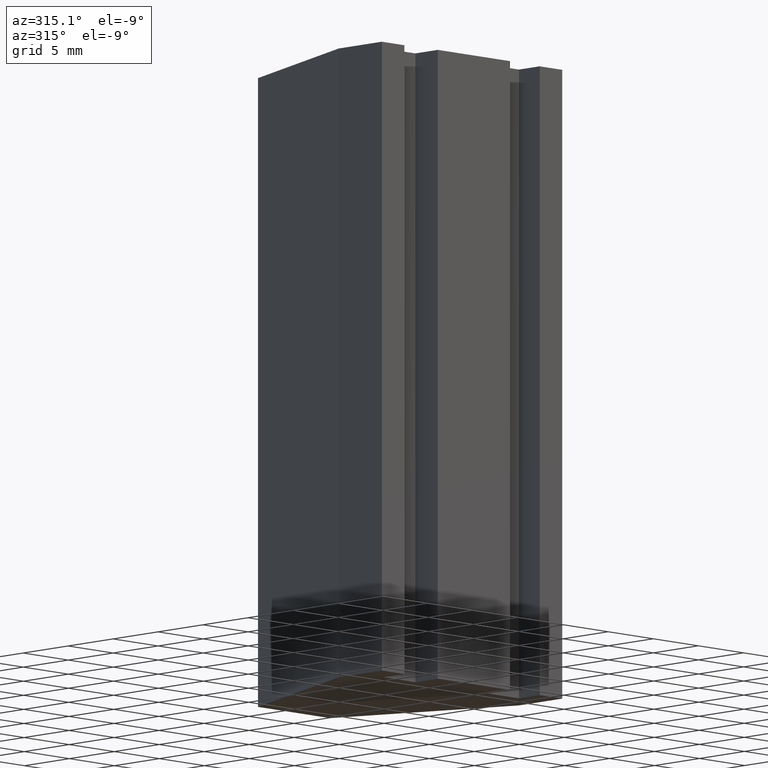
[diagram: clean part render]
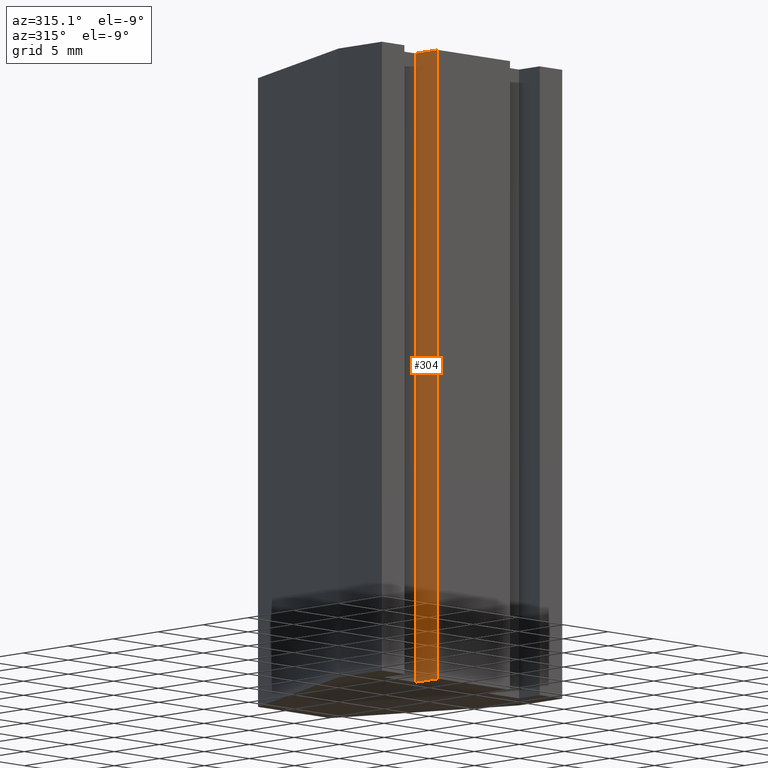
[diagram: same view with one face highlighted and labeled with its STEP entity id]
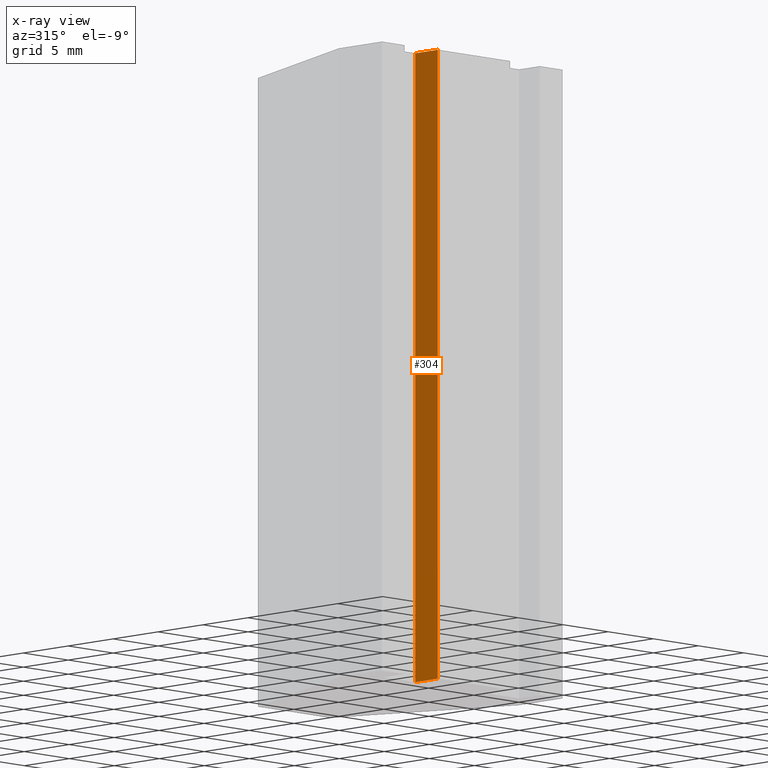
[diagram: x-ray of the same camera — body ghosted, the highlighted face saturated]
A machine part, auxiliary view. The second image highlights one B-rep face of the part: STEP entity #304.
The next image is the same camera in x-ray: the body ghosted, the highlighted face saturated — about 0% of this face is hidden behind the body in this view.
In plain terms, the highlighted planar face has unit normal (-1, 0, 0).
Its self-contained STEP definition (entity closure, byte-faithful):
#18=FACE_OUTER_BOUND('',#34,.T.);
#34=EDGE_LOOP('',(#213,#214,#215,#216));
#56=LINE('',#450,#98);
#57=LINE('',#453,#99);
#58=LINE('',#455,#100);
#59=LINE('',#456,#101);
#98=VECTOR('',#370,10.);
#99=VECTOR('',#373,10.);
#100=VECTOR('',#374,10.);
#101=VECTOR('',#375,10.);
#137=VERTEX_POINT('',#446);
#138=VERTEX_POINT('',#448);
#139=VERTEX_POINT('',#452);
#140=VERTEX_POINT('',#454);
#168=EDGE_CURVE('',#137,#138,#56,.T.);
#169=EDGE_CURVE('',#137,#139,#57,.T.);
#170=EDGE_CURVE('',#140,#138,#58,.T.);
#171=EDGE_CURVE('',#139,#140,#59,.T.);
#213=ORIENTED_EDGE('',*,*,#169,.F.);
#214=ORIENTED_EDGE('',*,*,#168,.T.);
#215=ORIENTED_EDGE('',*,*,#170,.F.);
#216=ORIENTED_EDGE('',*,*,#171,.F.);
#288=PLANE('',#340);
#304=ADVANCED_FACE('',(#18),#288,.T.);
#340=AXIS2_PLACEMENT_3D('',#451,#371,#372);
#370=DIRECTION('',(0.,0.,-1.));
#371=DIRECTION('center_axis',(-1.,0.,0.));
#372=DIRECTION('ref_axis',(0.,1.,0.));
#373=DIRECTION('',(0.,-1.,0.));
#374=DIRECTION('',(0.,1.,0.));
#375=DIRECTION('',(0.,0.,-1.));
#446=CARTESIAN_POINT('',(-4.,2.5,0.));
#448=CARTESIAN_POINT('',(-4.,2.5,-50.));
#450=CARTESIAN_POINT('',(-4.,2.5,0.));
#451=CARTESIAN_POINT('Origin',(-4.,0.,0.));
#452=CARTESIAN_POINT('',(-4.,0.,0.));
#453=CARTESIAN_POINT('',(-4.,2.5,0.));
#454=CARTESIAN_POINT('',(-4.,0.,-50.));
#455=CARTESIAN_POINT('',(-4.,2.5,-50.));
#456=CARTESIAN_POINT('',(-4.,0.,0.));